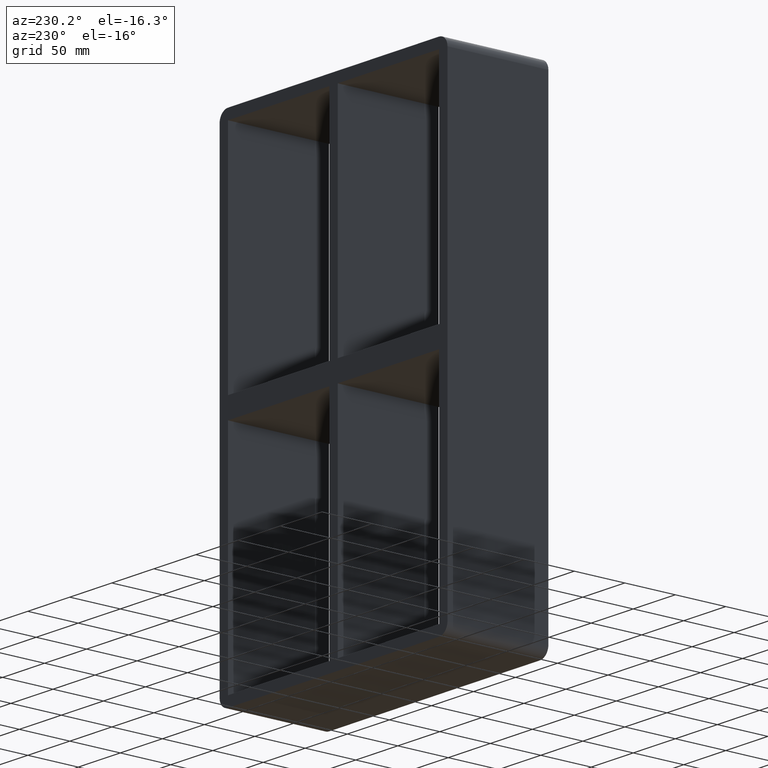
[diagram: clean part render]
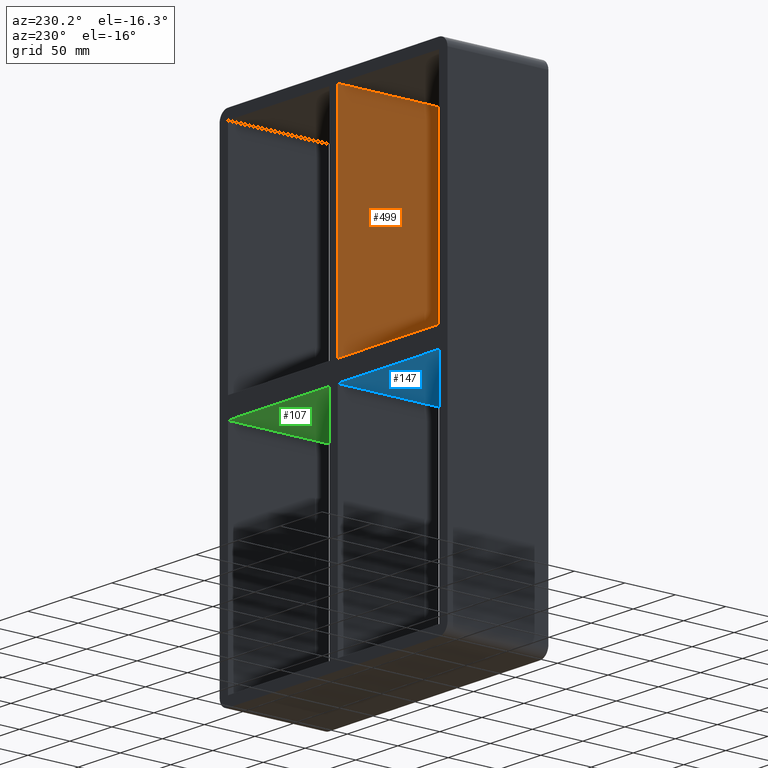
[diagram: same view with three faces highlighted in distinct colors, each labeled with its STEP entity id]
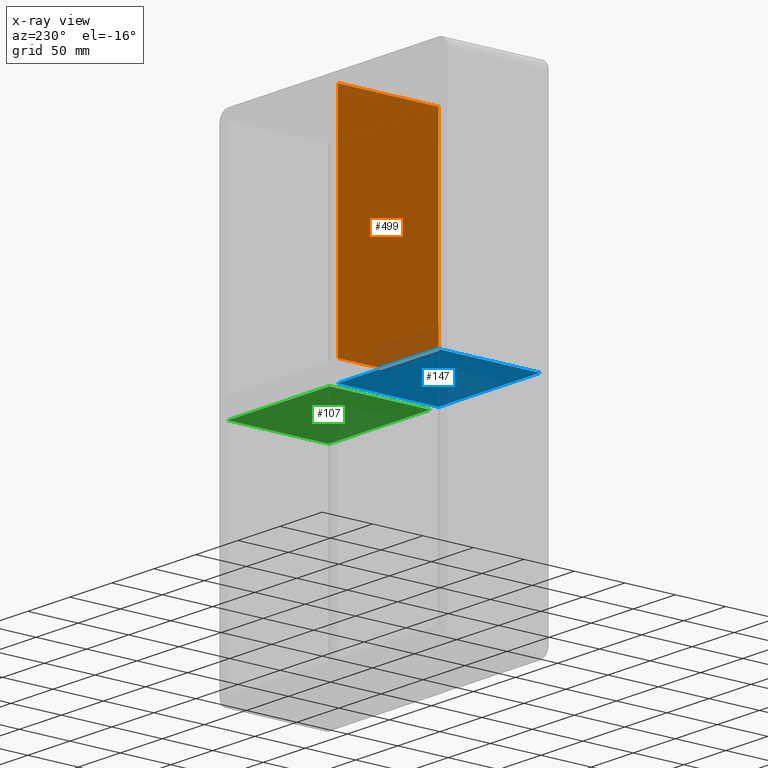
[diagram: x-ray of the same camera — body ghosted, the three highlighted faces saturated]
A machine part, auxiliary view with three faces highlighted in distinct colors.
The next image is the same camera in x-ray (body ghosted, the three faces saturated) — at least one of them is partly hidden behind the body in this view.
Their STEP definitions:

[orange] entity #499 — the highlighted planar face has unit normal (-1, 0, 0).
#193=CARTESIAN_POINT('',(-5.000000000001226,97.0,9.999999999962768));
#194=VERTEX_POINT('',#193);
#195=CARTESIAN_POINT('',(-5.000000000001226,-3.0,9.999999999962768));
#196=VERTEX_POINT('',#195);
#197=CARTESIAN_POINT('',(-5.000000000001235,97.0,9.999999999962768));
#198=DIRECTION('',(0.0,-1.0,0.0));
#199=VECTOR('',#198,100.0);
#200=LINE('',#197,#199);
#201=EDGE_CURVE('',#194,#196,#200,.T.);
#458=CARTESIAN_POINT('',(-5.00000000000127,97.0,227.99999999999997));
#459=VERTEX_POINT('',#458);
#460=CARTESIAN_POINT('',(-5.000000000001232,97.0,9.999999999962768));
#461=DIRECTION('',(0.0,0.0,1.0));
#462=VECTOR('',#461,218.00000000003718);
#463=LINE('',#460,#462);
#464=EDGE_CURVE('',#194,#459,#463,.T.);
#476=CARTESIAN_POINT('',(-5.00000000000119,-3.0,-228.00000000000006));
#477=DIRECTION('',(-1.0,0.0,0.0));
#478=DIRECTION('',(0.0,0.0,1.0));
#479=AXIS2_PLACEMENT_3D('',#476,#477,#478);
#480=PLANE('',#479);
#481=ORIENTED_EDGE('',*,*,#201,.T.);
#482=CARTESIAN_POINT('',(-5.00000000000127,-3.0,227.99999999999997));
#483=VERTEX_POINT('',#482);
#484=CARTESIAN_POINT('',(-5.000000000001232,-3.0,9.999999999962768));
#485=DIRECTION('',(0.0,0.0,1.0));
#486=VECTOR('',#485,218.00000000003718);
#487=LINE('',#484,#486);
#488=EDGE_CURVE('',#196,#483,#487,.T.);
#489=ORIENTED_EDGE('',*,*,#488,.T.);
#490=CARTESIAN_POINT('',(-5.000000000001275,97.0,228.0));
#491=DIRECTION('',(0.0,-1.0,0.0));
#492=VECTOR('',#491,100.0);
#493=LINE('',#490,#492);
#494=EDGE_CURVE('',#459,#483,#493,.T.);
#495=ORIENTED_EDGE('',*,*,#494,.F.);
#496=ORIENTED_EDGE('',*,*,#464,.F.);
#497=EDGE_LOOP('',(#481,#489,#495,#496));
#498=FACE_OUTER_BOUND('',#497,.T.);
#499=ADVANCED_FACE('',(#498),#480,.T.);

[blue] entity #147 — the highlighted planar face has unit normal (0, 0, -1).
#108=CARTESIAN_POINT('',(125.49999999999272,-3.0,-10.000000000052779));
#109=DIRECTION('',(0.0,0.0,-1.0));
#110=DIRECTION('',(-1.0,0.0,0.0));
#111=AXIS2_PLACEMENT_3D('',#108,#109,#110);
#112=PLANE('',#111);
#113=CARTESIAN_POINT('',(-5.000000000001226,-3.0,-10.000000000052825));
#114=VERTEX_POINT('',#113);
#115=CARTESIAN_POINT('',(-5.000000000001226,97.0,-10.000000000052825));
#116=VERTEX_POINT('',#115);
#117=CARTESIAN_POINT('',(-5.000000000001226,-3.0,-10.000000000052832));
#118=DIRECTION('',(0.0,1.0,0.0));
#119=VECTOR('',#118,100.0);
#120=LINE('',#117,#119);
#121=EDGE_CURVE('',#114,#116,#120,.T.);
#122=ORIENTED_EDGE('',*,*,#121,.F.);
#123=CARTESIAN_POINT('',(-125.49999999999963,-3.0,-10.000000000052864));
#124=VERTEX_POINT('',#123);
#125=CARTESIAN_POINT('',(-5.000000000001222,-3.0,-10.000000000052824));
#126=DIRECTION('',(-1.0,0.0,0.0));
#127=VECTOR('',#126,120.49999999999838);
#128=LINE('',#125,#127);
#129=EDGE_CURVE('',#114,#124,#128,.T.);
#130=ORIENTED_EDGE('',*,*,#129,.T.);
#131=CARTESIAN_POINT('',(-125.49999999999963,97.0,-10.000000000052864));
#132=VERTEX_POINT('',#131);
#133=CARTESIAN_POINT('',(-125.5,97.0,-10.000000000052871));
#134=DIRECTION('',(0.0,-1.0,0.0));
#135=VECTOR('',#134,100.0);
#136=LINE('',#133,#135);
#137=EDGE_CURVE('',#132,#124,#136,.T.);
#138=ORIENTED_EDGE('',*,*,#137,.F.);
#139=CARTESIAN_POINT('',(-5.000000000001222,97.0,-10.000000000052824));
#140=DIRECTION('',(-1.0,0.0,0.0));
#141=VECTOR('',#140,120.49999999999838);
#142=LINE('',#139,#141);
#143=EDGE_CURVE('',#116,#132,#142,.T.);
#144=ORIENTED_EDGE('',*,*,#143,.F.);
#145=EDGE_LOOP('',(#122,#130,#138,#144));
#146=FACE_OUTER_BOUND('',#145,.T.);
#147=ADVANCED_FACE('',(#146),#112,.T.);

[green] entity #107 — the highlighted planar face has unit normal (0, 0, -1).
#68=CARTESIAN_POINT('',(125.49999999999272,-3.0,-10.000000000052779));
#69=DIRECTION('',(0.0,0.0,-1.0));
#70=DIRECTION('',(-1.0,0.0,0.0));
#71=AXIS2_PLACEMENT_3D('',#68,#69,#70);
#72=PLANE('',#71);
#73=CARTESIAN_POINT('',(5.0,97.0,-10.00000000005282));
#74=VERTEX_POINT('',#73);
#75=CARTESIAN_POINT('',(5.0,-3.0,-10.00000000005282));
#76=VERTEX_POINT('',#75);
#77=CARTESIAN_POINT('',(5.0,97.0,-10.000000000052831));
#78=DIRECTION('',(0.0,-1.0,0.0));
#79=VECTOR('',#78,100.0);
#80=LINE('',#77,#79);
#81=EDGE_CURVE('',#74,#76,#80,.T.);
#82=ORIENTED_EDGE('',*,*,#81,.F.);
#83=CARTESIAN_POINT('',(125.49999999999272,97.0,-10.000000000052779));
#84=VERTEX_POINT('',#83);
#85=CARTESIAN_POINT('',(125.49999999999272,97.0,-10.000000000052779));
#86=DIRECTION('',(-1.0,0.0,0.0));
#87=VECTOR('',#86,120.49999999999272);
#88=LINE('',#85,#87);
#89=EDGE_CURVE('',#84,#74,#88,.T.);
#90=ORIENTED_EDGE('',*,*,#89,.F.);
#91=CARTESIAN_POINT('',(125.49999999999272,-3.0,-10.000000000052779));
#92=VERTEX_POINT('',#91);
#93=CARTESIAN_POINT('',(125.5,-3.0,-10.000000000052793));
#94=DIRECTION('',(0.0,1.0,0.0));
#95=VECTOR('',#94,100.0);
#96=LINE('',#93,#95);
#97=EDGE_CURVE('',#92,#84,#96,.T.);
#98=ORIENTED_EDGE('',*,*,#97,.F.);
#99=CARTESIAN_POINT('',(125.49999999999272,-3.0,-10.000000000052779));
#100=DIRECTION('',(-1.0,0.0,0.0));
#101=VECTOR('',#100,120.49999999999272);
#102=LINE('',#99,#101);
#103=EDGE_CURVE('',#92,#76,#102,.T.);
#104=ORIENTED_EDGE('',*,*,#103,.T.);
#105=EDGE_LOOP('',(#82,#90,#98,#104));
#106=FACE_OUTER_BOUND('',#105,.T.);
#107=ADVANCED_FACE('',(#106),#72,.T.);